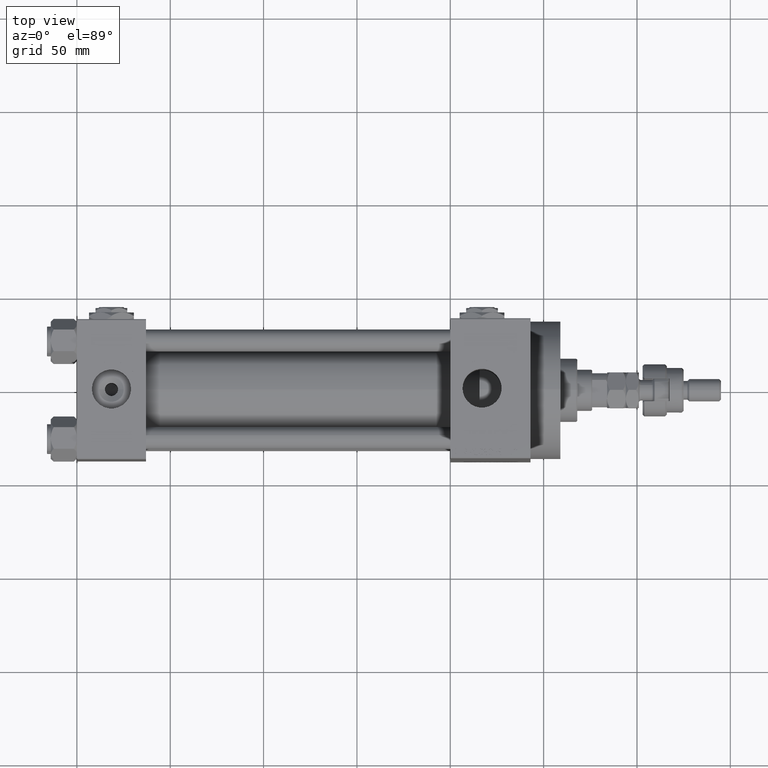
[diagram: clean part render]
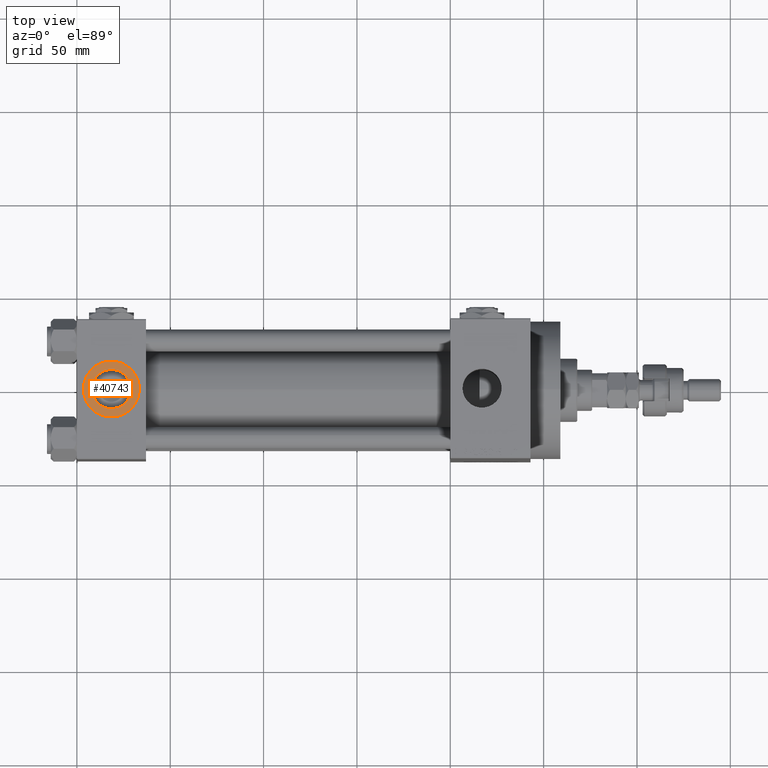
[diagram: same view with one face highlighted and labeled with its STEP entity id]
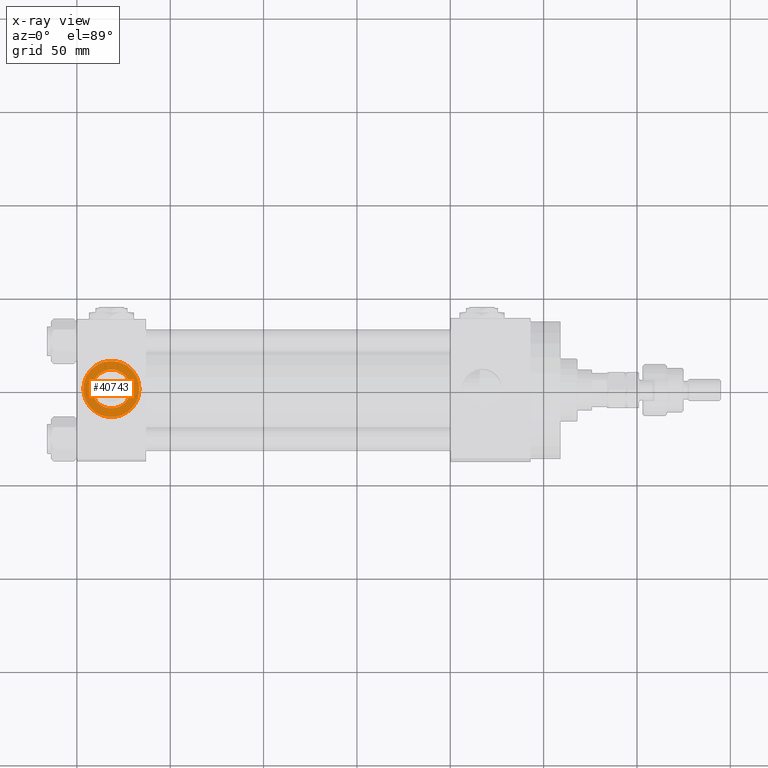
[diagram: x-ray of the same camera — body ghosted, the highlighted face saturated]
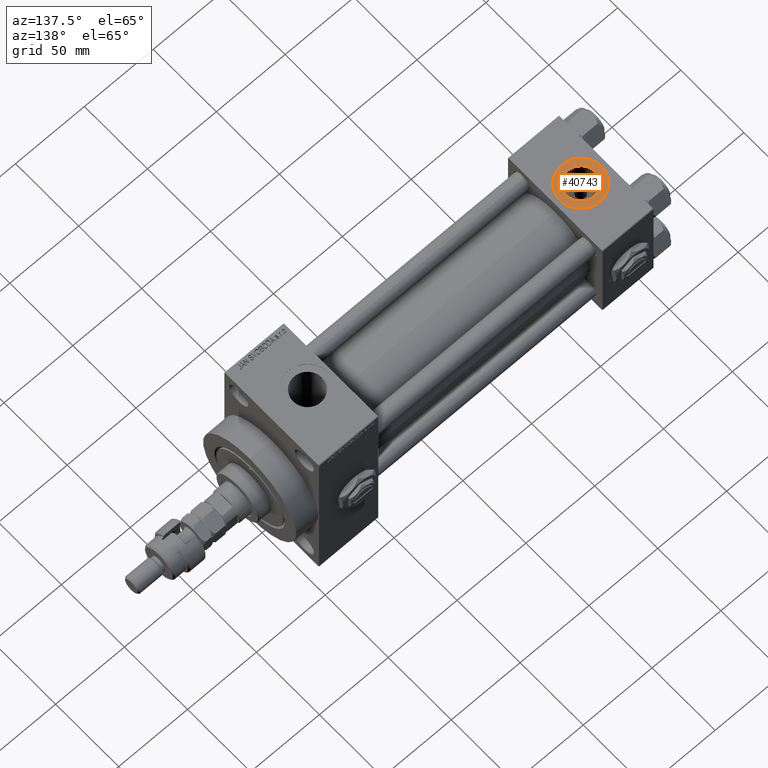
[diagram: same view with one face highlighted and labeled with its STEP entity id]
A machine part, top view. The second image highlights one B-rep face of the part: STEP entity #40743.
The next image is the same camera in x-ray: the body ghosted, the highlighted face saturated — about 0% of this face is hidden behind the body in this view.
A second angle (auxiliary view) of the same face is appended — the face is thin or edge-on in the first view.
In plain terms, the highlighted planar face has unit normal (0, 0, 1).
Its self-contained STEP definition (entity closure, byte-faithful):
#3871 = AXIS2_PLACEMENT_3D ( 'NONE', #13690, #21607, #45685 ) ;
#4575 = AXIS2_PLACEMENT_3D ( 'NONE', #17565, #33710, #14322 ) ;
#5742 = EDGE_LOOP ( 'NONE', ( #23821, #16135 ) ) ;
#5781 = ORIENTED_EDGE ( 'NONE', *, *, #26371, .F. ) ;
#6834 = CIRCLE ( 'NONE', #36399, 10.48000000000000043 ) ;
#6873 = DIRECTION ( 'NONE',  ( 0.000000000000000000, 0.000000000000000000, 1.000000000000000000 ) ) ;
#7118 = CARTESIAN_POINT ( 'NONE',  ( 18.50000000000000000, -5.204170427930421283E-15, 37.29999999999999716 ) ) ;
#8602 = EDGE_LOOP ( 'NONE', ( #5781, #8809 ) ) ;
#8809 = ORIENTED_EDGE ( 'NONE', *, *, #14783, .F. ) ;
#11102 = DIRECTION ( 'NONE',  ( 0.000000000000000000, 0.000000000000000000, 1.000000000000000000 ) ) ;
#13690 = CARTESIAN_POINT ( 'NONE',  ( 18.50000000000000000, -5.204170427930421283E-15, 37.29999999999999716 ) ) ;
#14322 = DIRECTION ( 'NONE',  ( 1.000000000000000000, 0.000000000000000000, 0.000000000000000000 ) ) ;
#14783 = EDGE_CURVE ( 'NONE', #29660, #47831, #6834, .T. ) ;
#15488 = DIRECTION ( 'NONE',  ( 0.000000000000000000, 0.000000000000000000, 1.000000000000000000 ) ) ;
#16135 = ORIENTED_EDGE ( 'NONE', *, *, #46853, .T. ) ;
#17376 = CIRCLE ( 'NONE', #3871, 15.00000000000000355 ) ;
#17565 = CARTESIAN_POINT ( 'NONE',  ( 18.50000000000000000, -5.204170427930421283E-15, 37.29999999999999716 ) ) ;
#18919 = CARTESIAN_POINT ( 'NONE',  ( 18.50000000000000000, -5.204170427930421283E-15, 37.29999999999999716 ) ) ;
#21607 = DIRECTION ( 'NONE',  ( 0.000000000000000000, 0.000000000000000000, 1.000000000000000000 ) ) ;
#23252 = DIRECTION ( 'NONE',  ( 1.000000000000000000, 0.000000000000000000, -0.000000000000000000 ) ) ;
#23667 = DIRECTION ( 'NONE',  ( 1.000000000000000000, 0.000000000000000000, 0.000000000000000000 ) ) ;
#23821 = ORIENTED_EDGE ( 'NONE', *, *, #29853, .T. ) ;
#25695 = AXIS2_PLACEMENT_3D ( 'NONE', #26710, #6873, #51315 ) ;
#26371 = EDGE_CURVE ( 'NONE', #47831, #29660, #27400, .T. ) ;
#26434 = AXIS2_PLACEMENT_3D ( 'NONE', #7118, #11102, #23252 ) ;
#26710 = CARTESIAN_POINT ( 'NONE',  ( 18.50000000000000000, -5.204170427930421283E-15, 37.29999999999999716 ) ) ;
#27400 = CIRCLE ( 'NONE', #4575, 10.48000000000000043 ) ;
#29660 = VERTEX_POINT ( 'NONE', #31952 ) ;
#29853 = EDGE_CURVE ( 'NONE', #31381, #33394, #17376, .T. ) ;
#31174 = FACE_OUTER_BOUND ( 'NONE', #5742, .T. ) ;
#31381 = VERTEX_POINT ( 'NONE', #36841 ) ;
#31952 = CARTESIAN_POINT ( 'NONE',  ( 8.019999999999999574, -3.920740582423995006E-15, 37.29999999999999716 ) ) ;
#33394 = VERTEX_POINT ( 'NONE', #39018 ) ;
#33710 = DIRECTION ( 'NONE',  ( 0.000000000000000000, 0.000000000000000000, 1.000000000000000000 ) ) ;
#36399 = AXIS2_PLACEMENT_3D ( 'NONE', #18919, #15488, #23667 ) ;
#36841 = CARTESIAN_POINT ( 'NONE',  ( 33.50000000000000000, -5.204170427930421283E-15, 37.29999999999999716 ) ) ;
#39018 = CARTESIAN_POINT ( 'NONE',  ( 3.499999999999997780, -3.367200229209391300E-15, 37.29999999999999716 ) ) ;
#40510 = CARTESIAN_POINT ( 'NONE',  ( 28.98000000000000043, -5.204170427930421283E-15, 37.29999999999999716 ) ) ;
#40743 = ADVANCED_FACE ( 'NONE', ( #51299, #31174 ), #47333, .T. ) ;
#45685 = DIRECTION ( 'NONE',  ( 1.000000000000000000, 0.000000000000000000, 0.000000000000000000 ) ) ;
#46853 = EDGE_CURVE ( 'NONE', #33394, #31381, #51892, .T. ) ;
#47333 = PLANE ( 'NONE',  #26434 ) ;
#47831 = VERTEX_POINT ( 'NONE', #40510 ) ;
#51299 = FACE_BOUND ( 'NONE', #8602, .T. ) ;
#51315 = DIRECTION ( 'NONE',  ( 1.000000000000000000, 0.000000000000000000, 0.000000000000000000 ) ) ;
#51892 = CIRCLE ( 'NONE', #25695, 15.00000000000000355 ) ;